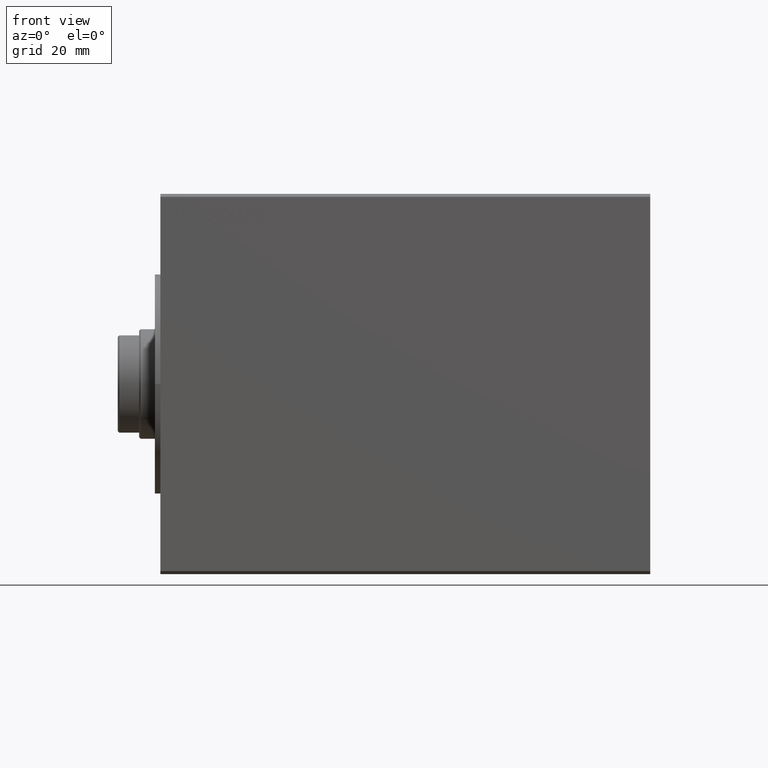
[diagram: clean part render]
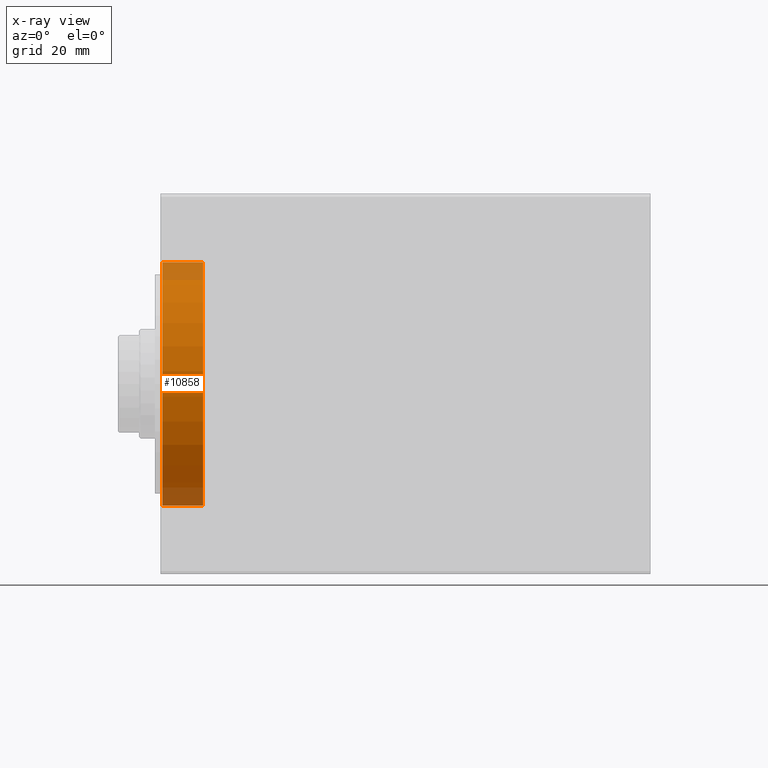
[diagram: x-ray — body ghosted, one internal face saturated and labeled with its STEP entity id]
A machine part, front view, then the same camera in x-ray: the body is ghosted and one INTERNAL B-rep face — a face not visible from any outside direction — is saturated and labeled: STEP entity #10858.
In plain terms, the highlighted cylindrical surface (partial cylindrical patch) has radius 40 mm, axis along (-1, -0, -0).
Its self-contained STEP definition (entity closure, byte-faithful):
#2580 = DIRECTION ( 'NONE',  ( -1.000000000000000000, 0.000000000000000000, 0.000000000000000000 ) ) ;
#4256 = LINE ( 'NONE', #10859, #22829 ) ;
#6438 = DIRECTION ( 'NONE',  ( 0.000000000000000000, 0.000000000000000000, -1.000000000000000000 ) ) ;
#6735 = DIRECTION ( 'NONE',  ( -1.000000000000000000, -0.000000000000000000, -0.000000000000000000 ) ) ;
#7498 = CARTESIAN_POINT ( 'NONE',  ( 14.00000000000000000, 4.898587196589413026E-15, -40.00000000000000000 ) ) ;
#10840 = DIRECTION ( 'NONE',  ( 0.000000000000000000, 0.000000000000000000, 1.000000000000000000 ) ) ;
#10858 = ADVANCED_FACE ( 'NONE', ( #24760 ), #11516, .F. ) ;
#10859 = CARTESIAN_POINT ( 'NONE',  ( 14.00000000000000000, 0.000000000000000000, 40.00000000000000000 ) ) ;
#11516 = CYLINDRICAL_SURFACE ( 'NONE', #34198, 40.00000000000000000 ) ;
#11603 = AXIS2_PLACEMENT_3D ( 'NONE', #17067, #37100, #40982 ) ;
#13293 = VECTOR ( 'NONE', #6735, 1000.000000000000000 ) ;
#13536 = VERTEX_POINT ( 'NONE', #44877 ) ;
#14588 = ORIENTED_EDGE ( 'NONE', *, *, #18468, .F. ) ;
#15438 = EDGE_CURVE ( 'NONE', #21662, #13536, #41596, .T. ) ;
#15487 = AXIS2_PLACEMENT_3D ( 'NONE', #23099, #2580, #6438 ) ;
#17067 = CARTESIAN_POINT ( 'NONE',  ( 14.00000000000000000, 0.000000000000000000, 0.000000000000000000 ) ) ;
#18468 = EDGE_CURVE ( 'NONE', #38786, #40099, #4256, .T. ) ;
#20931 = DIRECTION ( 'NONE',  ( -1.000000000000000000, -0.000000000000000000, -0.000000000000000000 ) ) ;
#21217 = CARTESIAN_POINT ( 'NONE',  ( 0.7000000000000408118, 0.000000000000000000, 40.00000000000000000 ) ) ;
#21662 = VERTEX_POINT ( 'NONE', #7498 ) ;
#21801 = CARTESIAN_POINT ( 'NONE',  ( 14.00000000000000000, 0.000000000000000000, 0.000000000000000000 ) ) ;
#22829 = VECTOR ( 'NONE', #20931, 1000.000000000000000 ) ;
#23099 = CARTESIAN_POINT ( 'NONE',  ( 0.7000000000000408118, 0.000000000000000000, 0.000000000000000000 ) ) ;
#24760 = FACE_OUTER_BOUND ( 'NONE', #28497, .T. ) ;
#25449 = CIRCLE ( 'NONE', #11603, 40.00000000000000000 ) ;
#27037 = CARTESIAN_POINT ( 'NONE',  ( 14.00000000000000000, 4.898587196589413026E-15, -40.00000000000000000 ) ) ;
#27381 = EDGE_CURVE ( 'NONE', #21662, #38786, #25449, .T. ) ;
#28497 = EDGE_LOOP ( 'NONE', ( #30530, #35682, #44304, #14588 ) ) ;
#28519 = EDGE_CURVE ( 'NONE', #13536, #40099, #42424, .T. ) ;
#30530 = ORIENTED_EDGE ( 'NONE', *, *, #27381, .F. ) ;
#31815 = DIRECTION ( 'NONE',  ( -1.000000000000000000, -0.000000000000000000, -0.000000000000000000 ) ) ;
#34198 = AXIS2_PLACEMENT_3D ( 'NONE', #21801, #31815, #10840 ) ;
#35682 = ORIENTED_EDGE ( 'NONE', *, *, #15438, .T. ) ;
#37100 = DIRECTION ( 'NONE',  ( -1.000000000000000000, 0.000000000000000000, 0.000000000000000000 ) ) ;
#38654 = CARTESIAN_POINT ( 'NONE',  ( 14.00000000000000000, 0.000000000000000000, 40.00000000000000000 ) ) ;
#38786 = VERTEX_POINT ( 'NONE', #38654 ) ;
#40099 = VERTEX_POINT ( 'NONE', #21217 ) ;
#40982 = DIRECTION ( 'NONE',  ( 0.000000000000000000, 0.000000000000000000, 1.000000000000000000 ) ) ;
#41596 = LINE ( 'NONE', #27037, #13293 ) ;
#42424 = CIRCLE ( 'NONE', #15487, 40.00000000000000000 ) ;
#44304 = ORIENTED_EDGE ( 'NONE', *, *, #28519, .T. ) ;
#44877 = CARTESIAN_POINT ( 'NONE',  ( 0.7000000000000408118, 4.898587196589413026E-15, -40.00000000000000000 ) ) ;